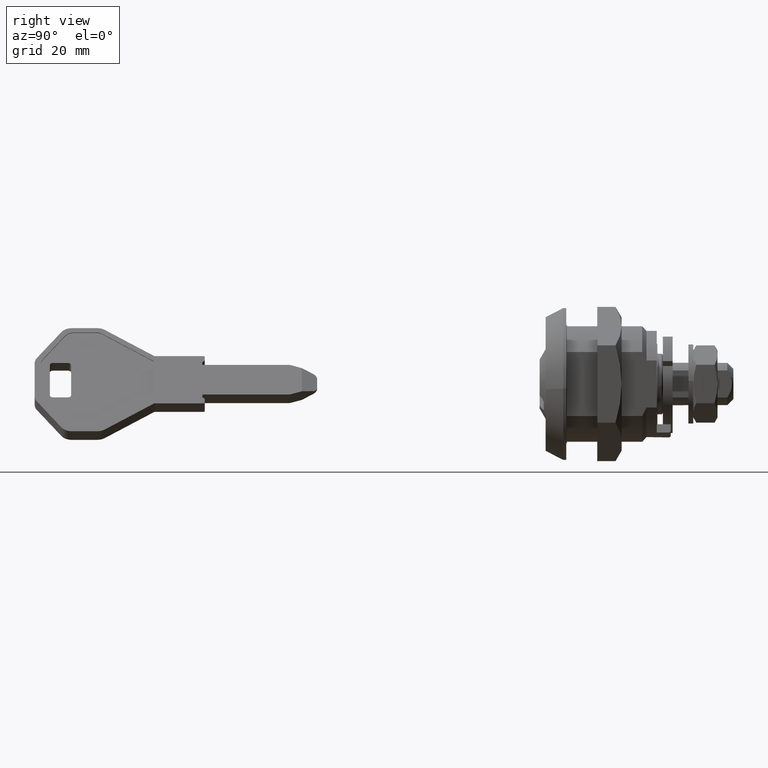
[diagram: clean part render]
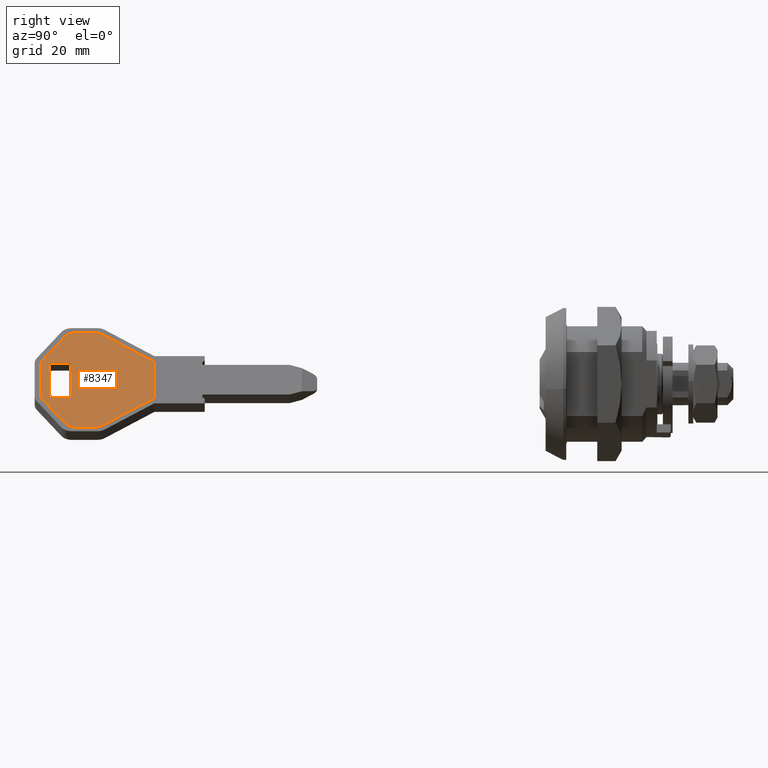
[diagram: same view with one face highlighted and labeled with its STEP entity id]
A machine part, right view. The second image highlights one B-rep face of the part: STEP entity #8347.
In plain terms, the highlighted face is a freeform B-spline surface patch.
Its self-contained STEP definition (entity closure, byte-faithful):
#7432=CARTESIAN_POINT('',(-2.368929998165287,-67.847984019646304,3.641722182518175));
#7433=VERTEX_POINT('',#7432);
#7439=CARTESIAN_POINT('',(3.641722182522735,-67.847984019646503,-2.368929998169847));
#7440=VERTEX_POINT('',#7439);
#7441=CARTESIAN_POINT('',(3.641722182522735,-67.847984019646503,-2.368929998169847));
#7442=CARTESIAN_POINT('',(-2.368929998165287,-67.847984019646304,3.641722182518175));
#7443=QUASI_UNIFORM_CURVE('',1,(#7441,#7442),.UNSPECIFIED.,.F.,.U.);
#7444=EDGE_CURVE('',#7440,#7433,#7443,.T.);
#7461=CARTESIAN_POINT('',(8.131884437998291,-76.317971744925202,-6.859092253645405));
#7462=VERTEX_POINT('',#7461);
#7463=CARTESIAN_POINT('',(8.131884437998291,-76.317971744925202,-6.859092253645405));
#7464=CARTESIAN_POINT('',(3.641722182522735,-67.847984019646503,-2.368929998169847));
#7465=QUASI_UNIFORM_CURVE('',1,(#7463,#7464),.UNSPECIFIED.,.F.,.U.);
#7466=EDGE_CURVE('',#7462,#7440,#7465,.T.);
#7492=CARTESIAN_POINT('',(8.414570552110677,-77.517676412567297,-7.141778367757789));
#7493=VERTEX_POINT('',#7492);
#7494=CARTESIAN_POINT('',(8.414570552110677,-77.517676412567297,-7.141778367757789));
#7495=CARTESIAN_POINT('',(8.414570552110677,-76.851214817315054,-7.141778367757789));
#7496=CARTESIAN_POINT('',(8.131884437998314,-76.317971744925174,-6.859092253645428));
#7504=(BOUNDED_CURVE()B_SPLINE_CURVE(2,(#7494,#7495,#7496),.UNSPECIFIED.,.F.,.U.)CURVE()GEOMETRIC_REPRESENTATION_ITEM()QUASI_UNIFORM_CURVE()RATIONAL_B_SPLINE_CURVE((1.0,0.948712477082207,1.0))REPRESENTATION_ITEM(''));
#7505=EDGE_CURVE('',#7493,#7462,#7504,.T.);
#7522=CARTESIAN_POINT('',(8.414570552110675,-80.912432744212296,-7.141778367757789));
#7523=VERTEX_POINT('',#7522);
#7524=CARTESIAN_POINT('',(8.414570552110675,-80.912432744212296,-7.141778367757789));
#7525=CARTESIAN_POINT('',(8.414570552110677,-77.517676412567297,-7.141778367757789));
#7526=QUASI_UNIFORM_CURVE('',1,(#7524,#7525),.UNSPECIFIED.,.F.,.U.);
#7527=EDGE_CURVE('',#7523,#7493,#7526,.T.);
#7553=CARTESIAN_POINT('',(7.784821541068028,-82.576533332887806,-6.512029356715142));
#7554=VERTEX_POINT('',#7553);
#7555=CARTESIAN_POINT('',(7.784821541068079,-82.576533332887919,-6.512029356715194));
#7556=CARTESIAN_POINT('',(8.414570552110675,-81.982800261188203,-7.141778367757789));
#7557=CARTESIAN_POINT('',(8.414570552110675,-80.912432744212296,-7.141778367757789));
#7565=(BOUNDED_CURVE()B_SPLINE_CURVE(2,(#7555,#7556,#7557),.UNSPECIFIED.,.F.,.U.)CURVE()GEOMETRIC_REPRESENTATION_ITEM()QUASI_UNIFORM_CURVE()RATIONAL_B_SPLINE_CURVE((1.0,0.881674598767958,1.0))REPRESENTATION_ITEM(''));
#7566=EDGE_CURVE('',#7554,#7523,#7565,.T.);
#7583=CARTESIAN_POINT('',(3.960556971354720,-86.182084608322000,-2.687764787001833));
#7584=VERTEX_POINT('',#7583);
#7585=CARTESIAN_POINT('',(3.960556971354720,-86.182084608322000,-2.687764787001833));
#7586=CARTESIAN_POINT('',(7.784821541068028,-82.576533332887806,-6.512029356715142));
#7587=QUASI_UNIFORM_CURVE('',1,(#7585,#7586),.UNSPECIFIED.,.F.,.U.);
#7588=EDGE_CURVE('',#7584,#7554,#7587,.T.);
#7614=CARTESIAN_POINT('',(3.176092444227515,-86.517984019646306,-1.903300259874628));
#7615=VERTEX_POINT('',#7614);
#7616=CARTESIAN_POINT('',(3.176092444227515,-86.517984019646306,-1.903300259874628));
#7617=CARTESIAN_POINT('',(3.604281850136117,-86.517984019646306,-2.331489665783231));
#7618=CARTESIAN_POINT('',(3.960556971354715,-86.182084608321986,-2.687764787001829));
#7626=(BOUNDED_CURVE()B_SPLINE_CURVE(2,(#7616,#7617,#7618),.UNSPECIFIED.,.F.,.U.)CURVE()GEOMETRIC_REPRESENTATION_ITEM()QUASI_UNIFORM_CURVE()RATIONAL_B_SPLINE_CURVE((1.0,0.957092026489052,1.0))REPRESENTATION_ITEM(''));
#7627=EDGE_CURVE('',#7615,#7584,#7626,.T.);
#7644=CARTESIAN_POINT('',(-1.903300259766089,-86.517984019646406,3.176092444118976));
#7645=VERTEX_POINT('',#7644);
#7646=CARTESIAN_POINT('',(-1.903300259766089,-86.517984019646406,3.176092444118976));
#7647=CARTESIAN_POINT('',(3.176092444227515,-86.517984019646306,-1.903300259874628));
#7648=QUASI_UNIFORM_CURVE('',1,(#7646,#7647),.UNSPECIFIED.,.F.,.U.);
#7649=EDGE_CURVE('',#7645,#7615,#7648,.T.);
#7675=CARTESIAN_POINT('',(-2.687764786893425,-86.182084608321901,3.960556971246311));
#7676=VERTEX_POINT('',#7675);
#7677=CARTESIAN_POINT('',(-2.687764786893412,-86.182084608321873,3.960556971246299));
#7678=CARTESIAN_POINT('',(-2.331489665674772,-86.517984019646306,3.604281850027659));
#7679=CARTESIAN_POINT('',(-1.903300259766089,-86.517984019646306,3.176092444118976));
#7687=(BOUNDED_CURVE()B_SPLINE_CURVE(2,(#7677,#7678,#7679),.UNSPECIFIED.,.F.,.U.)CURVE()GEOMETRIC_REPRESENTATION_ITEM()QUASI_UNIFORM_CURVE()RATIONAL_B_SPLINE_CURVE((1.0,0.957092026489037,1.0))REPRESENTATION_ITEM(''));
#7688=EDGE_CURVE('',#7676,#7645,#7687,.T.);
#7705=CARTESIAN_POINT('',(-6.512029356715161,-82.576533332785601,7.784821541068046));
#7706=VERTEX_POINT('',#7705);
#7707=CARTESIAN_POINT('',(-6.512029356715161,-82.576533332785601,7.784821541068046));
#7708=CARTESIAN_POINT('',(-2.687764786893425,-86.182084608321901,3.960556971246311));
#7709=QUASI_UNIFORM_CURVE('',1,(#7707,#7708),.UNSPECIFIED.,.F.,.U.);
#7710=EDGE_CURVE('',#7706,#7676,#7709,.T.);
#7736=CARTESIAN_POINT('',(-7.141778367757894,-80.912432744212396,8.414570552110780));
#7737=VERTEX_POINT('',#7736);
#7738=CARTESIAN_POINT('',(-7.141778367757794,-80.912432744212396,8.414570552110680));
#7739=CARTESIAN_POINT('',(-7.141778367719004,-81.982800261122435,8.414570552071890));
#7740=CARTESIAN_POINT('',(-6.512029356715146,-82.576533332785573,7.784821541068031));
#7748=(BOUNDED_CURVE()B_SPLINE_CURVE(2,(#7738,#7739,#7740),.UNSPECIFIED.,.F.,.U.)CURVE()GEOMETRIC_REPRESENTATION_ITEM()QUASI_UNIFORM_CURVE()RATIONAL_B_SPLINE_CURVE((1.0,0.881674598780038,1.0))REPRESENTATION_ITEM(''));
#7749=EDGE_CURVE('',#7737,#7706,#7748,.T.);
#7766=CARTESIAN_POINT('',(-7.141778367757794,-77.517676412576392,8.414570552110680));
#7767=VERTEX_POINT('',#7766);
#7768=CARTESIAN_POINT('',(-7.141778367757794,-77.517676412576392,8.414570552110680));
#7769=CARTESIAN_POINT('',(-7.141778367757894,-80.912432744212396,8.414570552110780));
#7770=QUASI_UNIFORM_CURVE('',1,(#7768,#7769),.UNSPECIFIED.,.F.,.U.);
#7771=EDGE_CURVE('',#7767,#7737,#7770,.T.);
#7797=CARTESIAN_POINT('',(-6.859092253645409,-76.317971744934098,8.131884437998297));
#7798=VERTEX_POINT('',#7797);
#7799=CARTESIAN_POINT('',(-6.859092253645360,-76.317971744934155,8.131884437998247));
#7800=CARTESIAN_POINT('',(-7.141778367757794,-76.851214817324063,8.414570552110680));
#7801=CARTESIAN_POINT('',(-7.141778367757794,-77.517676412576392,8.414570552110680));
#7809=(BOUNDED_CURVE()B_SPLINE_CURVE(2,(#7799,#7800,#7801),.UNSPECIFIED.,.F.,.U.)CURVE()GEOMETRIC_REPRESENTATION_ITEM()QUASI_UNIFORM_CURVE()RATIONAL_B_SPLINE_CURVE((1.0,0.948712477082194,1.0))REPRESENTATION_ITEM(''));
#7810=EDGE_CURVE('',#7798,#7767,#7809,.T.);
#7827=CARTESIAN_POINT('',(-2.368929998165287,-67.847984019646304,3.641722182518175));
#7828=CARTESIAN_POINT('',(-6.859092253645409,-76.317971744934098,8.131884437998297));
#7829=QUASI_UNIFORM_CURVE('',1,(#7827,#7828),.UNSPECIFIED.,.F.,.U.);
#7830=EDGE_CURVE('',#7433,#7798,#7829,.T.);
#8246=CARTESIAN_POINT('',(-7.918817966154113,-87.450550483460319,9.191610150506982));
#8247=CARTESIAN_POINT('',(-7.918817966154111,-66.915417055063969,9.191610150506982));
#8248=CARTESIAN_POINT('',(9.191610567760669,-87.450550483460319,-7.918818383407801));
#8249=CARTESIAN_POINT('',(9.191610567760671,-66.915417055063969,-7.918818383407801));
#8250=B_SPLINE_SURFACE_WITH_KNOTS('',1,1,((#8246,#8248),(#8247,#8249)),.UNSPECIFIED.,.F.,.F.,.U.,(2,2),(2,2),(0.0,20.535133428396350),(0.0,24.197800504805599),.UNSPECIFIED.);
#8251=ORIENTED_EDGE('',*,*,#7830,.T.);
#8252=ORIENTED_EDGE('',*,*,#7810,.T.);
#8253=ORIENTED_EDGE('',*,*,#7771,.T.);
#8254=ORIENTED_EDGE('',*,*,#7749,.T.);
#8255=ORIENTED_EDGE('',*,*,#7710,.T.);
#8256=ORIENTED_EDGE('',*,*,#7688,.T.);
#8257=ORIENTED_EDGE('',*,*,#7649,.T.);
#8258=ORIENTED_EDGE('',*,*,#7627,.T.);
#8259=ORIENTED_EDGE('',*,*,#7588,.T.);
#8260=ORIENTED_EDGE('',*,*,#7566,.T.);
#8261=ORIENTED_EDGE('',*,*,#7527,.T.);
#8262=ORIENTED_EDGE('',*,*,#7505,.T.);
#8263=ORIENTED_EDGE('',*,*,#7466,.T.);
#8264=ORIENTED_EDGE('',*,*,#7444,.T.);
#8265=EDGE_LOOP('',(#8251,#8252,#8253,#8254,#8255,#8256,#8257,#8258,#8259,#8260,#8261,#8262,#8263,#8264));
#8266=FACE_OUTER_BOUND('',#8265,.T.);
#8267=CARTESIAN_POINT('',(-2.192030984163281,-82.017984019657007,3.464823168516168));
#8268=VERTEX_POINT('',#8267);
#8269=CARTESIAN_POINT('',(-2.192030984149153,-84.517984019656410,3.464823168502040));
#8270=VERTEX_POINT('',#8269);
#8271=CARTESIAN_POINT('',(-2.192030984163281,-82.017984019657007,3.464823168516168));
#8272=CARTESIAN_POINT('',(-2.192030984149153,-84.517984019656410,3.464823168502040));
#8273=QUASI_UNIFORM_CURVE('',1,(#8271,#8272),.UNSPECIFIED.,.F.,.U.);
#8274=EDGE_CURVE('',#8268,#8270,#8273,.T.);
#8275=ORIENTED_EDGE('',*,*,#8274,.F.);
#8276=CARTESIAN_POINT('',(-1.838477599620918,-81.517984019646306,3.111269783973805));
#8277=VERTEX_POINT('',#8276);
#8278=CARTESIAN_POINT('',(-1.838477599620918,-81.517984019646306,3.111269783973805));
#8279=CARTESIAN_POINT('',(-1.890559623383809,-81.517864780118785,3.163351807736698));
#8280=CARTESIAN_POINT('',(-1.977265702191096,-81.545612651355114,3.250057886543981));
#8281=CARTESIAN_POINT('',(-2.074498364442793,-81.637533975494719,3.347290548795679));
#8282=CARTESIAN_POINT('',(-2.162132519412553,-81.781067712619361,3.434924703765440));
#8283=CARTESIAN_POINT('',(-2.192286324003040,-81.919700589014013,3.465078508355927));
#8284=CARTESIAN_POINT('',(-2.192030984163281,-82.017984019657007,3.464823168516168));
#8285=B_SPLINE_CURVE_WITH_KNOTS('',3,(#8278,#8279,#8280,#8281,#8282,#8283,#8284),.UNSPECIFIED.,.F.,.U.,(4,1,1,1,4),(0.000000517783514,0.220919928794515,0.368226022249973,0.490920261228365,0.785476941793206),.UNSPECIFIED.);
#8286=EDGE_CURVE('',#8277,#8268,#8285,.T.);
#8287=ORIENTED_EDGE('',*,*,#8286,.F.);
#8288=CARTESIAN_POINT('',(3.111269783966535,-81.517984019656311,-1.838477599613648));
#8289=VERTEX_POINT('',#8288);
#8290=CARTESIAN_POINT('',(3.111269783966535,-81.517984019656311,-1.838477599613648));
#8291=CARTESIAN_POINT('',(-1.838477599620918,-81.517984019646306,3.111269783973805));
#8292=QUASI_UNIFORM_CURVE('',1,(#8290,#8291),.UNSPECIFIED.,.F.,.U.);
#8293=EDGE_CURVE('',#8289,#8277,#8292,.T.);
#8294=ORIENTED_EDGE('',*,*,#8293,.F.);
#8295=CARTESIAN_POINT('',(3.464823168509070,-82.017984019656311,-2.192030984156183));
#8296=VERTEX_POINT('',#8295);
#8297=CARTESIAN_POINT('',(3.464823168509070,-82.017984019656311,-2.192030984156183));
#8298=CARTESIAN_POINT('',(3.464907628085769,-81.944330025867046,-2.192115443732880));
#8299=CARTESIAN_POINT('',(3.445287272253760,-81.821705975822553,-2.172495087900876));
#8300=CARTESIAN_POINT('',(3.380284839347190,-81.684211559896909,-2.107492654994299));
#8301=CARTESIAN_POINT('',(3.278805653829239,-81.560226815657686,-2.006013469476356));
#8302=CARTESIAN_POINT('',(3.180756919769886,-81.517663489386152,-1.907964735416996));
#8303=CARTESIAN_POINT('',(3.111269783966535,-81.517984019656311,-1.838477599613648));
#8304=B_SPLINE_CURVE_WITH_KNOTS('',3,(#8297,#8298,#8299,#8300,#8301,#8302,#8303),.UNSPECIFIED.,.F.,.U.,(4,1,1,1,4),(0.000000517785071,0.220919928792135,0.368226022245406,0.490920261221930,0.785476941782743),.UNSPECIFIED.);
#8305=EDGE_CURVE('',#8296,#8289,#8304,.T.);
#8306=ORIENTED_EDGE('',*,*,#8305,.F.);
#8307=CARTESIAN_POINT('',(3.464823168516162,-84.517984019659707,-2.192030984163276));
#8308=VERTEX_POINT('',#8307);
#8309=CARTESIAN_POINT('',(3.464823168516162,-84.517984019659707,-2.192030984163276));
#8310=CARTESIAN_POINT('',(3.464823168509070,-82.017984019656311,-2.192030984156183));
#8311=QUASI_UNIFORM_CURVE('',1,(#8309,#8310),.UNSPECIFIED.,.F.,.U.);
#8312=EDGE_CURVE('',#8308,#8296,#8311,.T.);
#8313=ORIENTED_EDGE('',*,*,#8312,.F.);
#8314=CARTESIAN_POINT('',(3.111269783973697,-85.017984019676305,-1.838477599620811));
#8315=VERTEX_POINT('',#8314);
#8316=CARTESIAN_POINT('',(3.111269783973697,-85.017984019676305,-1.838477599620811));
#8317=CARTESIAN_POINT('',(3.180761715194621,-85.018349586275392,-1.907969530841733));
#8318=CARTESIAN_POINT('',(3.290335393611964,-84.970669144270786,-2.017543209259081));
#8319=CARTESIAN_POINT('',(3.426457170695764,-84.787418085676322,-2.153664986342874));
#8320=CARTESIAN_POINT('',(3.465185796644131,-84.624508304825852,-2.192393612291247));
#8321=CARTESIAN_POINT('',(3.464823168516162,-84.517984019659707,-2.192030984163276));
#8322=B_SPLINE_CURVE_WITH_KNOTS('',3,(#8316,#8317,#8318,#8319,#8320,#8321),.UNSPECIFIED.,.F.,.U.,(4,1,1,4),(0.000000517782153,0.294557198350114,0.466351356550280,0.785476941799237),.UNSPECIFIED.);
#8323=EDGE_CURVE('',#8315,#8308,#8322,.T.);
#8324=ORIENTED_EDGE('',*,*,#8323,.F.);
#8325=CARTESIAN_POINT('',(-1.838477599618476,-85.017984019656410,3.111269783971362));
#8326=VERTEX_POINT('',#8325);
#8327=CARTESIAN_POINT('',(-1.838477599618476,-85.017984019656410,3.111269783971362));
#8328=CARTESIAN_POINT('',(3.111269783973697,-85.017984019676305,-1.838477599620811));
#8329=QUASI_UNIFORM_CURVE('',1,(#8327,#8328),.UNSPECIFIED.,.F.,.U.);
#8330=EDGE_CURVE('',#8326,#8315,#8329,.T.);
#8331=ORIENTED_EDGE('',*,*,#8330,.F.);
#8332=CARTESIAN_POINT('',(-2.192030984149153,-84.517984019656410,3.464823168502039));
#8333=CARTESIAN_POINT('',(-2.192030984149154,-85.017984019656424,3.464823168502040));
#8334=CARTESIAN_POINT('',(-1.838477599606688,-85.017984019656410,3.111269783959575));
#8342=(BOUNDED_CURVE()B_SPLINE_CURVE(2,(#8332,#8333,#8334),.UNSPECIFIED.,.F.,.U.)CURVE()GEOMETRIC_REPRESENTATION_ITEM()QUASI_UNIFORM_CURVE()RATIONAL_B_SPLINE_CURVE((1.0,0.707106781186548,1.0))REPRESENTATION_ITEM(''));
#8343=EDGE_CURVE('',#8270,#8326,#8342,.T.);
#8344=ORIENTED_EDGE('',*,*,#8343,.F.);
#8345=EDGE_LOOP('',(#8275,#8287,#8294,#8306,#8313,#8324,#8331,#8344));
#8346=FACE_BOUND('',#8345,.T.);
#8347=ADVANCED_FACE('',(#8266,#8346),#8250,.F.);